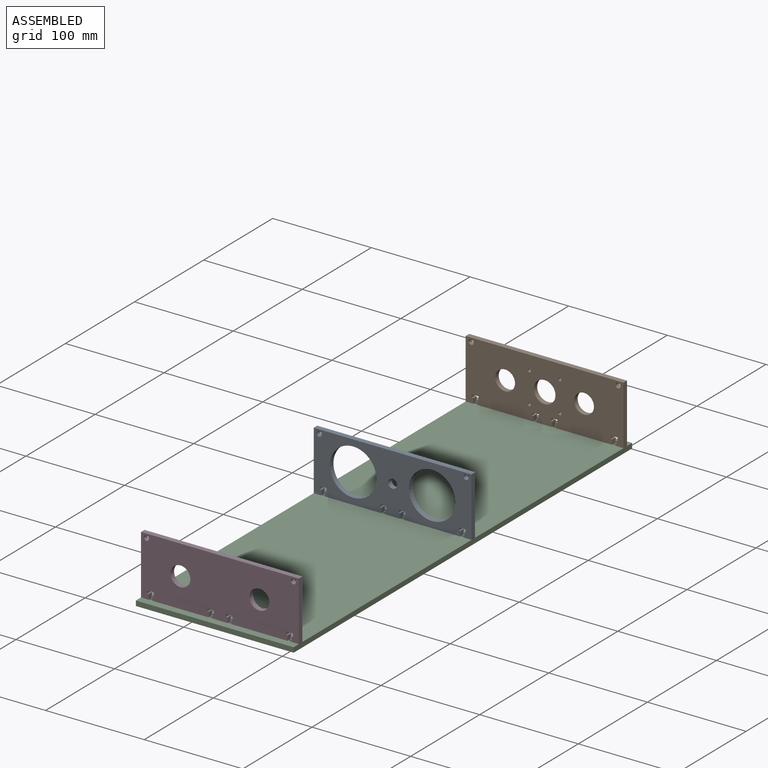
[diagram: assembled view]
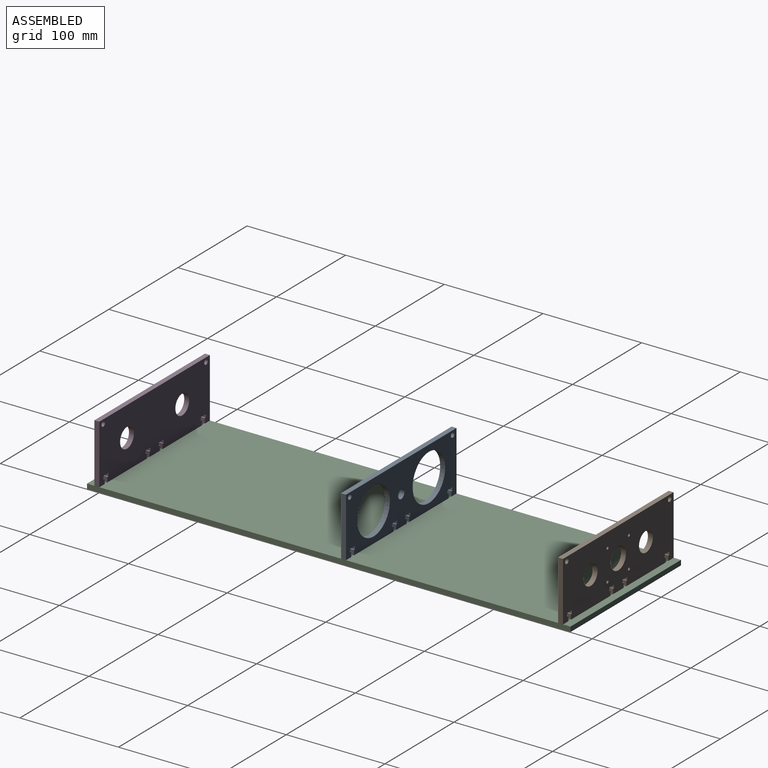
[diagram: assembled view, second angle]
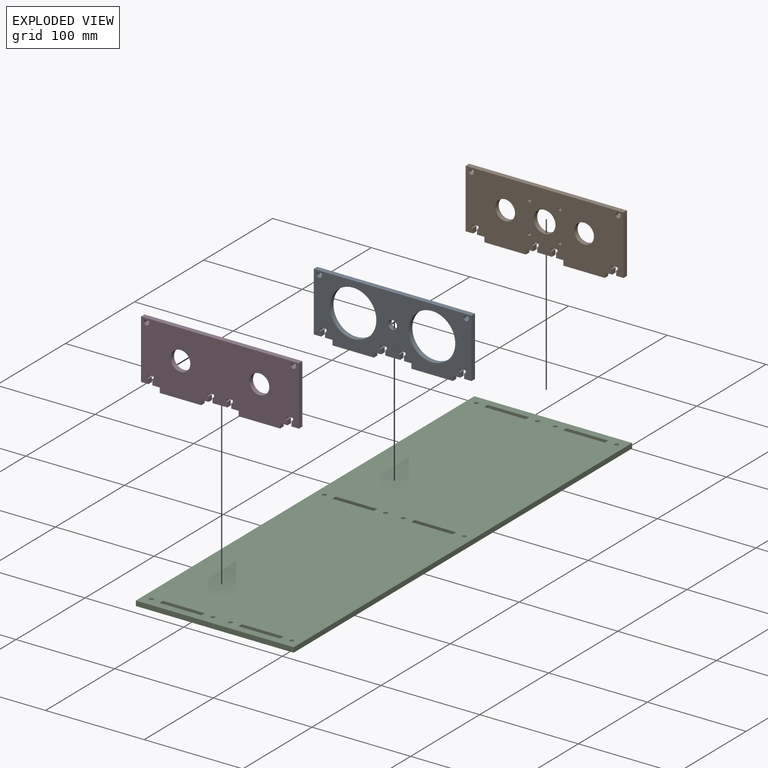
[diagram: exploded view]
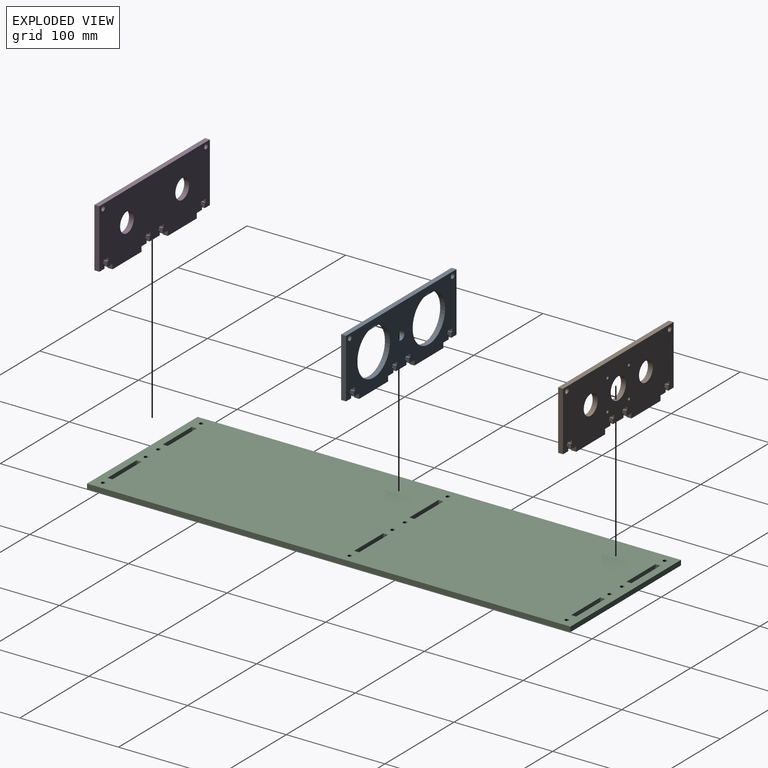
[diagram: exploded view, second angle]
ASSEMBLY  parts=4 mates=3
PART A: 51 faces, bbox 65x160x5 mm
  f0: plane 5x5mm, normal (0,-1,0), area 25mm2, adj f1,f47,f49,f50
  f1: plane 5x1.5mm, normal (1,0,0), area 7.5mm2, adj f0,f2,f49,f50
  f2: plane 5x3.1mm, normal (0,-1,0), area 15.5mm2, adj f1,f3,f49,f50
  f3: plane 7x5mm, normal (-1,0,0), area 35mm2, adj f2,f4,f49,f50
  f4: plane 5x3.1mm, normal (0,1,0), area 15.5mm2, adj f3,f5,f49,f50
  f5: plane 5x1.5mm, normal (1,0,0), area 7.5mm2, adj f4,f6,f49,f50
  f6: plane 5x5mm, normal (0,1,0), area 25mm2, adj f5,f7,f49,f50
  f7: plane 7.5x5mm, normal (-1,0,0), area 37.5mm2, adj f6,f8,f49,f50
  f8: plane 5x5mm, normal (0,1,0), area 25mm2, adj f7,f9,f49,f50
  f9: plane 42x5mm, normal (-1,0,0), area 210mm2, adj f8,f10,f49,f50
  f10: plane 5x5mm, normal (0,-1,0), area 25mm2, adj f9,f11,f49,f50
  f11: plane 7.5x5mm, normal (-1,0,0), area 37.5mm2, adj f10,f12,f49,f50
  f12: plane 5x5mm, normal (0,-1,0), area 25mm2, adj f11,f13,f49,f50
  f13: plane 5x1.5mm, normal (1,0,0), area 7.5mm2, adj f12,f14,f49,f50
  f14: plane 5x3.1mm, normal (0,-1,0), area 15.5mm2, adj f13,f15,f49,f50
  f15: plane 7x5mm, normal (-1,0,0), area 35mm2, adj f14,f16,f49,f50
  f16: plane 5x3.1mm, normal (0,1,0), area 15.5mm2, adj f15,f17,f49,f50
  f17: plane 5x1.5mm, normal (1,0,0), area 7.5mm2, adj f16,f18,f49,f50
  f18: plane 5x5mm, normal (0,1,0), area 25mm2, adj f17,f19,f49,f50
  f19: plane 7.5x5mm, normal (-1,0,0), area 37.5mm2, adj f18,f20,f49,f50
  f20: plane 60x5mm, normal (0,-1,0), area 300mm2, adj f19,f21,f49,f50
  f21: plane 160x5mm, normal (1,0,0), area 800mm2, adj f20,f22,f49,f50
  f22: plane 60x5mm, normal (0,1,0), area 300mm2, adj f21,f23,f49,f50
  f23: plane 7.5x5mm, normal (-1,0,0), area 37.5mm2, adj f22,f24,f49,f50
  f24: plane 5x5mm, normal (0,-1,0), area 25mm2, adj f23,f25,f49,f50
  f25: plane 5x1.5mm, normal (1,0,0), area 7.5mm2, adj f24,f26,f49,f50
  f26: plane 5x3.1mm, normal (0,-1,0), area 15.5mm2, adj f25,f27,f49,f50
  f27: plane 7x5mm, normal (-1,0,0), area 35mm2, adj f26,f28,f49,f50
  f28: plane 5x3.1mm, normal (0,1,0), area 15.5mm2, adj f27,f29,f49,f50
  f29: plane 5x1.5mm, normal (1,0,0), area 7.5mm2, adj f28,f30,f49,f50
  f30: plane 5x5mm, normal (0,1,0), area 25mm2, adj f29,f31,f49,f50
  f31: plane 7.5x5mm, normal (-1,0,0), area 37.5mm2, adj f30,f32,f49,f50
  f32: plane 5x5mm, normal (0,1,0), area 25mm2, adj f31,f33,f49,f50
  f33: plane 42x5mm, normal (-1,0,0), area 210mm2, adj f32,f34,f49,f50
  f34: plane 5x5mm, normal (0,-1,0), area 25mm2, adj f33,f35,f49,f50
  f35: plane 7.5x5mm, normal (-1,0,0), area 37.5mm2, adj f34,f36,f49,f50
  f36: plane 5x5mm, normal (0,-1,0), area 25mm2, adj f35,f37,f49,f50
  f37: plane 5x1.5mm, normal (1,0,0), area 7.5mm2, adj f36,f38,f49,f50
  f38: plane 5x3.1mm, normal (0,-1,0), area 15.5mm2, adj f37,f39,f49,f50
  f39: plane 7x5mm, normal (-1,0,0), area 35mm2, adj f38,f40,f49,f50
  f40: plane 5x3.1mm, normal (0,1,0), area 15.5mm2, adj f39,f41,f49,f50
  f41: plane 5x1.5mm, normal (1,0,0), area 7.5mm2, adj f40,f42,f49,f50
  f42: plane 5x5mm, normal (0,1,0), area 25mm2, adj f41,f47,f49,f50
  f43: cylinder r=23.5mm len=47mm, axis (0,0,-1), area 738.3mm2, adj f49,f50
  f44: cylinder r=2.5mm len=5mm, axis (0,0,-1), area 78.5mm2, adj f49,f50
  f45: cylinder r=23.5mm len=47mm, axis (0,0,-1), area 738.3mm2, adj f49,f50
  f46: cylinder r=2.5mm len=5mm, axis (0,0,-1), area 78.5mm2, adj f49,f50
  f47: plane 15x5mm, normal (-1,0,0), area 75mm2, adj f0,f42,f49,f50
  f48: cylinder r=4.5mm len=9mm, axis (0,0,-1), area 141.4mm2, adj f49,f50
  f49: plane 160x65mm, normal (0,0,1), area 6280.4mm2, adj f0,f1,f2,f3,f4,f5,f6,f7
  f50: plane 160x65mm, normal (0,0,-1), area 6280.4mm2, adj f0,f1,f2,f3,f4,f5,f6,f7
PART B: 55 faces, bbox 65x160x5 mm
  f0: plane 5x5mm, normal (0,-1,0), area 25mm2, adj f1,f51,f53,f54
  f1: plane 5x1.5mm, normal (1,0,0), area 7.5mm2, adj f0,f2,f53,f54
  f2: plane 5x3.1mm, normal (0,-1,0), area 15.5mm2, adj f1,f3,f53,f54
  f3: plane 7x5mm, normal (-1,0,0), area 35mm2, adj f2,f4,f53,f54
  f4: plane 5x3.1mm, normal (0,1,0), area 15.5mm2, adj f3,f5,f53,f54
  f5: plane 5x1.5mm, normal (1,0,0), area 7.5mm2, adj f4,f6,f53,f54
  f6: plane 5x5mm, normal (0,1,0), area 25mm2, adj f5,f7,f53,f54
  f7: plane 7.5x5mm, normal (-1,0,0), area 37.5mm2, adj f6,f8,f53,f54
  f8: plane 5x5mm, normal (0,1,0), area 25mm2, adj f7,f9,f53,f54
  f9: plane 42x5mm, normal (-1,0,0), area 210mm2, adj f8,f10,f53,f54
  f10: plane 5x5mm, normal (0,-1,0), area 25mm2, adj f9,f11,f53,f54
  f11: plane 7.5x5mm, normal (-1,0,0), area 37.5mm2, adj f10,f12,f53,f54
  f12: plane 5x5mm, normal (0,-1,0), area 25mm2, adj f11,f13,f53,f54
  f13: plane 5x1.5mm, normal (1,0,0), area 7.5mm2, adj f12,f14,f53,f54
  f14: plane 5x3.1mm, normal (0,-1,0), area 15.5mm2, adj f13,f15,f53,f54
  f15: plane 7x5mm, normal (-1,0,0), area 35mm2, adj f14,f16,f53,f54
  f16: plane 5x3.1mm, normal (0,1,0), area 15.5mm2, adj f15,f17,f53,f54
  f17: plane 5x1.5mm, normal (1,0,0), area 7.5mm2, adj f16,f18,f53,f54
  f18: plane 5x5mm, normal (0,1,0), area 25mm2, adj f17,f19,f53,f54
  f19: plane 7.5x5mm, normal (-1,0,0), area 37.5mm2, adj f18,f20,f53,f54
  f20: plane 60x5mm, normal (0,-1,0), area 300mm2, adj f19,f21,f53,f54
  f21: plane 160x5mm, normal (1,0,0), area 800mm2, adj f20,f22,f53,f54
  f22: plane 60x5mm, normal (0,1,0), area 300mm2, adj f21,f23,f53,f54
  f23: plane 7.5x5mm, normal (-1,0,0), area 37.5mm2, adj f22,f24,f53,f54
  f24: plane 5x5mm, normal (0,-1,0), area 25mm2, adj f23,f25,f53,f54
  f25: plane 5x1.5mm, normal (1,0,0), area 7.5mm2, adj f24,f26,f53,f54
  f26: plane 5x3.1mm, normal (0,-1,0), area 15.5mm2, adj f25,f27,f53,f54
  f27: plane 7x5mm, normal (-1,0,0), area 35mm2, adj f26,f28,f53,f54
  f28: plane 5x3.1mm, normal (0,1,0), area 15.5mm2, adj f27,f29,f53,f54
  f29: plane 5x1.5mm, normal (1,0,0), area 7.5mm2, adj f28,f30,f53,f54
  f30: plane 5x5mm, normal (0,1,0), area 25mm2, adj f29,f31,f53,f54
  f31: plane 7.5x5mm, normal (-1,0,0), area 37.5mm2, adj f30,f32,f53,f54
  f32: plane 5x5mm, normal (0,1,0), area 25mm2, adj f31,f33,f53,f54
  f33: plane 42x5mm, normal (-1,0,0), area 210mm2, adj f32,f34,f53,f54
  f34: plane 5x5mm, normal (0,-1,0), area 25mm2, adj f33,f35,f53,f54
  f35: plane 7.5x5mm, normal (-1,0,0), area 37.5mm2, adj f34,f36,f53,f54
  f36: plane 5x5mm, normal (0,-1,0), area 25mm2, adj f35,f37,f53,f54
  f37: plane 5x1.5mm, normal (1,0,0), area 7.5mm2, adj f36,f38,f53,f54
  f38: plane 5x3.1mm, normal (0,-1,0), area 15.5mm2, adj f37,f39,f53,f54
  f39: plane 7x5mm, normal (-1,0,0), area 35mm2, adj f38,f40,f53,f54
  f40: plane 5x3.1mm, normal (0,1,0), area 15.5mm2, adj f39,f41,f53,f54
  f41: plane 5x1.5mm, normal (1,0,0), area 7.5mm2, adj f40,f42,f53,f54
  f42: plane 5x5mm, normal (0,1,0), area 25mm2, adj f41,f51,f53,f54
  f43: cylinder r=1.55mm len=5mm, axis (0,0,-1), area 48.7mm2, adj f53,f54
  f44: cylinder r=1.55mm len=5mm, axis (0,0,-1), area 48.7mm2, adj f53,f54
  f45: cylinder r=11mm len=22mm, axis (0,0,-1), area 345.6mm2, adj f53,f54
  f46: cylinder r=2.5mm len=5mm, axis (0,0,-1), area 78.5mm2, adj f53,f54
  f47: cylinder r=10mm len=20mm, axis (0,0,-1), area 314.2mm2, adj f53,f54
  f48: cylinder r=1.55mm len=5mm, axis (0,0,-1), area 48.7mm2, adj f53,f54
  f49: cylinder r=2.5mm len=5mm, axis (0,0,-1), area 78.5mm2, adj f53,f54
  f50: cylinder r=10mm len=20mm, axis (0,0,-1), area 314.2mm2, adj f53,f54
  f51: plane 15x5mm, normal (-1,0,0), area 75mm2, adj f0,f42,f53,f54
  f52: cylinder r=1.55mm len=5mm, axis (0,0,-1), area 48.7mm2, adj f53,f54
  f53: plane 160x65mm, normal (0,0,1), area 8775.3mm2, adj f0,f1,f2,f3,f4,f5,f6,f7
  f54: plane 160x65mm, normal (0,0,-1), area 8775.3mm2, adj f0,f1,f2,f3,f4,f5,f6,f7
PART C: 42 faces, bbox 160x490x5 mm
  f0: plane 42x5mm, normal (0,-1,0), area 210mm2, adj f1,f39,f40,f41
  f1: plane 5x5mm, normal (-1,0,0), area 25mm2, adj f0,f2,f40,f41
  f2: plane 42x5mm, normal (0,1,0), area 210mm2, adj f1,f39,f40,f41
  f3: plane 42x5mm, normal (0,-1,0), area 210mm2, adj f4,f21,f40,f41
  f4: plane 5x5mm, normal (-1,0,0), area 25mm2, adj f3,f5,f40,f41
  f5: plane 42x5mm, normal (0,1,0), area 210mm2, adj f4,f21,f40,f41
  f6: plane 160x5mm, normal (0,1,0), area 800mm2, adj f7,f22,f40,f41
  f7: plane 490x5mm, normal (-1,0,0), area 2450mm2, adj f6,f8,f40,f41
  f8: plane 160x5mm, normal (0,-1,0), area 800mm2, adj f7,f22,f40,f41
  f9: plane 5x5mm, normal (1,0,0), area 25mm2, adj f10,f23,f40,f41
  f10: plane 42x5mm, normal (0,-1,0), area 210mm2, adj f9,f11,f40,f41
  f11: plane 5x5mm, normal (-1,0,0), area 25mm2, adj f10,f23,f40,f41
  f12: plane 5x5mm, normal (1,0,0), area 25mm2, adj f13,f24,f40,f41
  f13: plane 42x5mm, normal (0,-1,0), area 210mm2, adj f12,f14,f40,f41
  f14: plane 5x5mm, normal (-1,0,0), area 25mm2, adj f13,f24,f40,f41
  f15: plane 42x5mm, normal (0,-1,0), area 210mm2, adj f16,f37,f40,f41
  f16: plane 5x5mm, normal (-1,0,0), area 25mm2, adj f15,f17,f40,f41
  f17: plane 42x5mm, normal (0,1,0), area 210mm2, adj f16,f37,f40,f41
  f18: plane 5x5mm, normal (1,0,0), area 25mm2, adj f19,f38,f40,f41
  f19: plane 42x5mm, normal (0,-1,0), area 210mm2, adj f18,f20,f40,f41
  f20: plane 5x5mm, normal (-1,0,0), area 25mm2, adj f19,f38,f40,f41
  f21: plane 5x5mm, normal (1,0,0), area 25mm2, adj f3,f5,f40,f41
  f22: plane 490x5mm, normal (1,0,0), area 2450mm2, adj f6,f8,f40,f41
  f23: plane 42x5mm, normal (0,1,0), area 210mm2, adj f9,f11,f40,f41
  f24: plane 42x5mm, normal (0,1,0), area 210mm2, adj f12,f14,f40,f41
  f25: cylinder r=2mm len=5mm, axis (0,0,-1), area 62.8mm2, adj f40,f41
  f26: cylinder r=2mm len=5mm, axis (0,0,-1), area 62.8mm2, adj f40,f41
  f27: cylinder r=2mm len=5mm, axis (0,0,-1), area 62.8mm2, adj f40,f41
  f28: cylinder r=2mm len=5mm, axis (0,0,-1), area 62.8mm2, adj f40,f41
  f29: cylinder r=2mm len=5mm, axis (0,0,-1), area 62.8mm2, adj f40,f41
  f30: cylinder r=2mm len=5mm, axis (0,0,-1), area 62.8mm2, adj f40,f41
  f31: cylinder r=2mm len=5mm, axis (0,0,-1), area 62.8mm2, adj f40,f41
  f32: cylinder r=2mm len=5mm, axis (0,0,-1), area 62.8mm2, adj f40,f41
  f33: cylinder r=2mm len=5mm, axis (0,0,-1), area 62.8mm2, adj f40,f41
  f34: cylinder r=2mm len=5mm, axis (0,0,-1), area 62.8mm2, adj f40,f41
  f35: cylinder r=2mm len=5mm, axis (0,0,-1), area 62.8mm2, adj f40,f41
  f36: cylinder r=2mm len=5mm, axis (0,0,-1), area 62.8mm2, adj f40,f41
  f37: plane 5x5mm, normal (1,0,0), area 25mm2, adj f15,f17,f40,f41
  f38: plane 42x5mm, normal (0,1,0), area 210mm2, adj f18,f20,f40,f41
  f39: plane 5x5mm, normal (1,0,0), area 25mm2, adj f0,f2,f40,f41
  f40: plane 490x160mm, normal (0,0,1), area 76989.2mm2, adj f0,f1,f2,f3,f4,f5,f6,f7
  f41: plane 490x160mm, normal (0,0,-1), area 76989.2mm2, adj f0,f1,f2,f3,f4,f5,f6,f7
PART D: 50 faces, bbox 65x160x5 mm
  f0: plane 5x5mm, normal (0,-1,0), area 25mm2, adj f1,f46,f48,f49
  f1: plane 5x1.5mm, normal (1,0,0), area 7.5mm2, adj f0,f2,f48,f49
  f2: plane 5x3.1mm, normal (0,-1,0), area 15.5mm2, adj f1,f3,f48,f49
  f3: plane 7x5mm, normal (-1,0,0), area 35mm2, adj f2,f4,f48,f49
  f4: plane 5x3.1mm, normal (0,1,0), area 15.5mm2, adj f3,f5,f48,f49
  f5: plane 5x1.5mm, normal (1,0,0), area 7.5mm2, adj f4,f6,f48,f49
  f6: plane 5x5mm, normal (0,1,0), area 25mm2, adj f5,f7,f48,f49
  f7: plane 7.5x5mm, normal (-1,0,0), area 37.5mm2, adj f6,f8,f48,f49
  f8: plane 5x5mm, normal (0,1,0), area 25mm2, adj f7,f9,f48,f49
  f9: plane 42x5mm, normal (-1,0,0), area 210mm2, adj f8,f10,f48,f49
  f10: plane 5x5mm, normal (0,-1,0), area 25mm2, adj f9,f11,f48,f49
  f11: plane 7.5x5mm, normal (-1,0,0), area 37.5mm2, adj f10,f12,f48,f49
  f12: plane 5x5mm, normal (0,-1,0), area 25mm2, adj f11,f13,f48,f49
  f13: plane 5x1.5mm, normal (1,0,0), area 7.5mm2, adj f12,f14,f48,f49
  f14: plane 5x3.1mm, normal (0,-1,0), area 15.5mm2, adj f13,f15,f48,f49
  f15: plane 7x5mm, normal (-1,0,0), area 35mm2, adj f14,f16,f48,f49
  f16: plane 5x3.1mm, normal (0,1,0), area 15.5mm2, adj f15,f17,f48,f49
  f17: plane 5x1.5mm, normal (1,0,0), area 7.5mm2, adj f16,f18,f48,f49
  f18: plane 5x5mm, normal (0,1,0), area 25mm2, adj f17,f19,f48,f49
  f19: plane 7.5x5mm, normal (-1,0,0), area 37.5mm2, adj f18,f20,f48,f49
  f20: plane 60x5mm, normal (0,-1,0), area 300mm2, adj f19,f21,f48,f49
  f21: plane 160x5mm, normal (1,0,0), area 800mm2, adj f20,f22,f48,f49
  f22: plane 60x5mm, normal (0,1,0), area 300mm2, adj f21,f23,f48,f49
  f23: plane 7.5x5mm, normal (-1,0,0), area 37.5mm2, adj f22,f24,f48,f49
  f24: plane 5x5mm, normal (0,-1,0), area 25mm2, adj f23,f25,f48,f49
  f25: plane 5x1.5mm, normal (1,0,0), area 7.5mm2, adj f24,f26,f48,f49
  f26: plane 5x3.1mm, normal (0,-1,0), area 15.5mm2, adj f25,f27,f48,f49
  f27: plane 7x5mm, normal (-1,0,0), area 35mm2, adj f26,f28,f48,f49
  f28: plane 5x3.1mm, normal (0,1,0), area 15.5mm2, adj f27,f29,f48,f49
  f29: plane 5x1.5mm, normal (1,0,0), area 7.5mm2, adj f28,f30,f48,f49
  f30: plane 5x5mm, normal (0,1,0), area 25mm2, adj f29,f31,f48,f49
  f31: plane 7.5x5mm, normal (-1,0,0), area 37.5mm2, adj f30,f32,f48,f49
  f32: plane 5x5mm, normal (0,1,0), area 25mm2, adj f31,f33,f48,f49
  f33: plane 42x5mm, normal (-1,0,0), area 210mm2, adj f32,f34,f48,f49
  f34: plane 5x5mm, normal (0,-1,0), area 25mm2, adj f33,f35,f48,f49
  f35: plane 7.5x5mm, normal (-1,0,0), area 37.5mm2, adj f34,f36,f48,f49
  f36: plane 5x5mm, normal (0,-1,0), area 25mm2, adj f35,f37,f48,f49
  f37: plane 5x1.5mm, normal (1,0,0), area 7.5mm2, adj f36,f38,f48,f49
  f38: plane 5x3.1mm, normal (0,-1,0), area 15.5mm2, adj f37,f39,f48,f49
  f39: plane 7x5mm, normal (-1,0,0), area 35mm2, adj f38,f40,f48,f49
  f40: plane 5x3.1mm, normal (0,1,0), area 15.5mm2, adj f39,f41,f48,f49
  f41: plane 5x1.5mm, normal (1,0,0), area 7.5mm2, adj f40,f42,f48,f49
  f42: plane 5x5mm, normal (0,1,0), area 25mm2, adj f41,f46,f48,f49
  f43: cylinder r=2.5mm len=5mm, axis (0,0,-1), area 78.5mm2, adj f48,f49
  f44: cylinder r=2.5mm len=5mm, axis (0,0,-1), area 78.5mm2, adj f48,f49
  f45: cylinder r=10mm len=20mm, axis (0,0,-1), area 314.2mm2, adj f48,f49
  f46: plane 15x5mm, normal (-1,0,0), area 75mm2, adj f0,f42,f48,f49
  f47: cylinder r=10mm len=20mm, axis (0,0,-1), area 314.2mm2, adj f48,f49
  f48: plane 160x65mm, normal (0,0,1), area 9185.6mm2, adj f0,f1,f2,f3,f4,f5,f6,f7
  f49: plane 160x65mm, normal (0,0,-1), area 9185.6mm2, adj f0,f1,f2,f3,f4,f5,f6,f7
PLACE A rot(axis=(-0.58,-0.58,-0.58),120deg) t=(94.32,-45.15,14.61)mm
PLACE B rot(axis=(-0.58,-0.58,-0.58),120deg) t=(94.32,174.85,14.61)mm
PLACE C t=(-6.68,28.85,-32.39)mm
PLACE D rot(axis=(-0.58,-0.58,-0.58),120deg) t=(94.32,-295.15,14.61)mm
MATE slider D.f33 <-> C.f41  axis (0,0,-1) through (73.32,-292.65,-32.39)mm
MATE slider A.f33 <-> C.f41  axis (0,0,-1) through (73.32,-42.65,-32.39)mm
MATE slider B.f33 <-> C.f41  axis (0,0,-1) through (73.32,177.35,-32.39)mm
